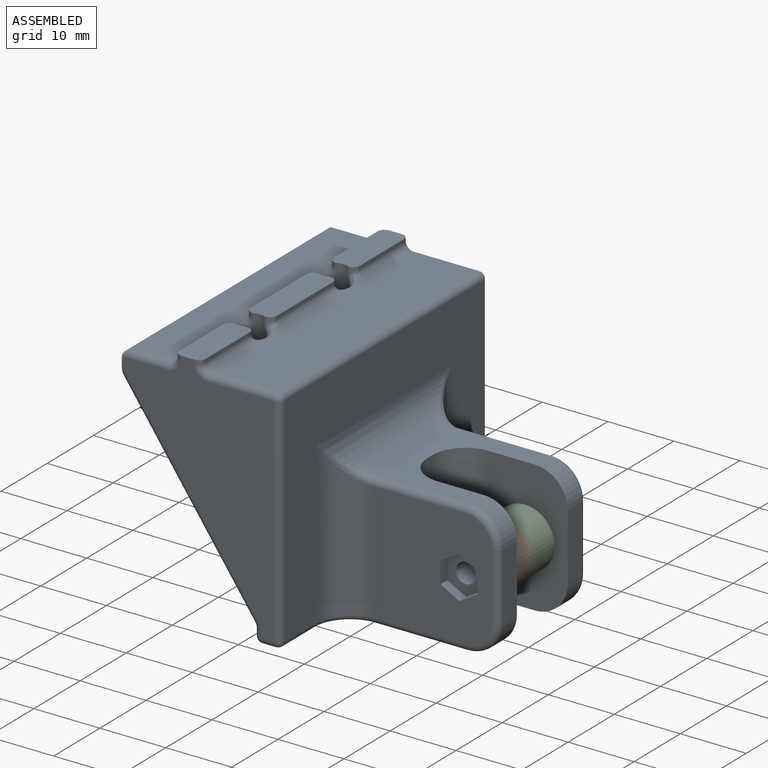
[diagram: assembled view]
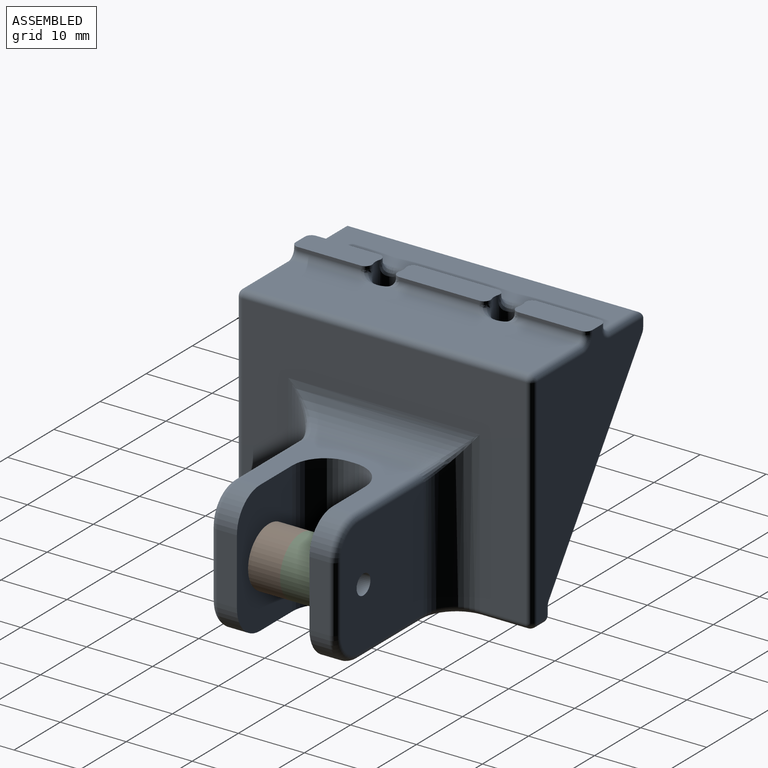
[diagram: assembled view, second angle]
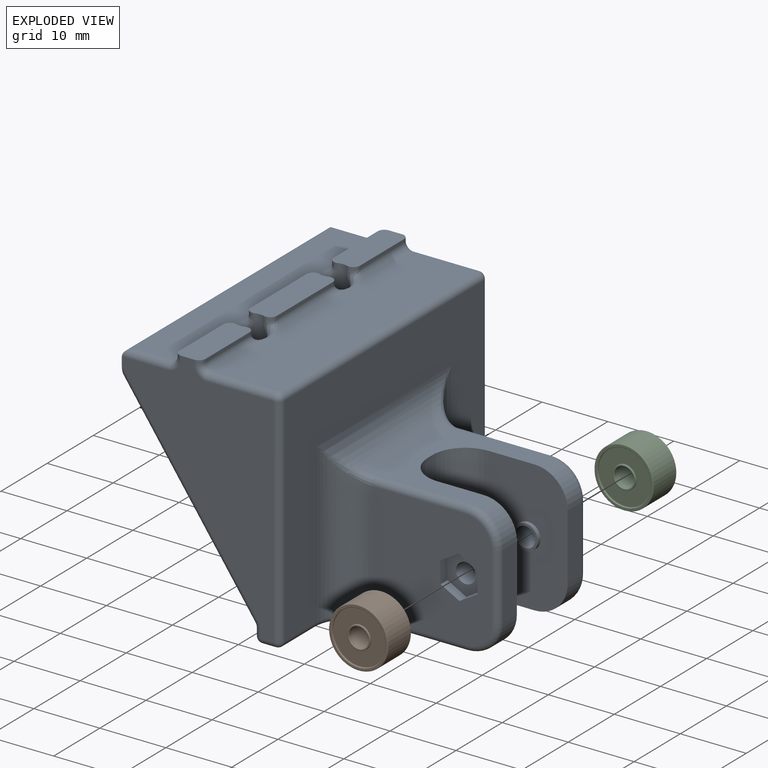
[diagram: exploded view]
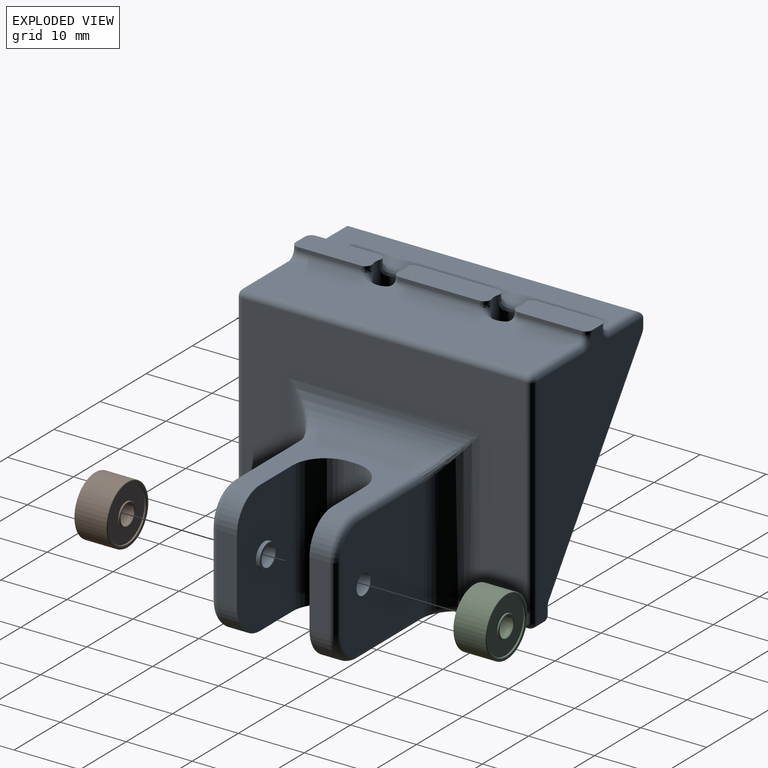
[diagram: exploded view, second angle]
ASSEMBLY  parts=3 mates=2
PART A: 149 faces, bbox 49.2x45x36.9 mm
  f0: plane 18x18mm, normal (0,-1,0), area 290mm2, adj f39,f94,f103,f108,f113,f116,f142,f143
  f1: plane 43x29mm, normal (-1,0,0), area 915.5mm2, adj f59,f60,f69,f77,f78,f88,f96,f97
  f2: plane 31x18mm, normal (0,0,-1), area 530.3mm2, adj f23,f24,f50,f60,f61,f62
  f3: plane 43x6mm, normal (0,0,1), area 257.8mm2, adj f123,f128,f129,f134,f135,f137,f138,f139
  f4: plane 17x14mm, normal (0,0,1), area 116.7mm2, adj f5,f6,f13,f40,f41,f42,f45,f46
  f5: plane 20x1mm, normal (1,0,0), area 20mm2, adj f4,f14,f41,f42
  f6: plane 20x12mm, normal (0,-1,0), area 217.9mm2, adj f4,f7,f14,f17,f41,f43,f45
  f7: plane 10x3mm, normal (1,0,0), area 30mm2, adj f6,f43,f45,f55
  f8: plane 18x18mm, normal (0,1,0), area 310.1mm2, adj f16,f38,f48,f49,f55,f66,f74
  f9: plane 35.5x23mm, normal (0,1,0), area 414.1mm2, adj f22,f27,f76,f86,f87,f91,f95,f96
  f10: plane 35.5x23mm, normal (0,-1,0), area 414.1mm2, adj f22,f33,f98,f99,f105,f106,f110,f111
  f11: plane 43x33mm, normal (1,0,0), area 723mm2, adj f38,f39,f40,f85,f102,f112,f118,f121
  f12: plane 10x3mm, normal (1,0,0), area 30mm2, adj f13,f44,f46,f108
  f13: plane 20x12mm, normal (0,1,0), area 217.9mm2, adj f4,f12,f14,f19,f42,f44,f46
  f14: plane 43x22mm, normal (0,0,-1), area 320.2mm2, adj f5,f6,f13,f41,f42,f43,f44,f74
  f15: cylinder r=1.5mm len=3.1mm, axis (0,-1,0), area 29.2mm2, adj f20,f148
  f16: cylinder r=1.5mm len=4.6mm, axis (0,-1,0), area 43.4mm2, adj f8,f18
  f17: cylinder r=1.9mm len=3.8mm, axis (0,1,0), area 7.2mm2, adj f6,f18
  f18: plane 3.8x3.8mm, normal (0,-1,0), area 4.3mm2, adj f16,f17
  f19: cylinder r=1.9mm len=3.8mm, axis (0,1,0), area 7.2mm2, adj f13,f20
  f20: plane 3.8x3.8mm, normal (0,1,0), area 4.3mm2, adj f15,f19
  f21: plane 43x10mm, normal (0,0,1), area 429.8mm2, adj f64,f65,f82,f83,f100,f101,f111,f112
  f22: plane 45x2.68mm, normal (-1,0,0), area 97.8mm2, adj f9,f10,f54,f62,f68,f72,f76,f89
  f23: cylinder r=2.1mm len=5.5mm, axis (0,0,1), area 49.2mm2, adj f2,f27,f30,f53,f56,f65,f67,f75
  f24: cylinder r=2.1mm len=5.5mm, axis (0,0,1), area 49.2mm2, adj f2,f30,f33,f63,f73,f81,f82,f90
  f25: plane 9.57x0.5mm, normal (1,0,0), area 4.8mm2, adj f27,f67,f83,f86
  f26: plane 9.57x0.5mm, normal (-1,0,0), area 4.8mm2, adj f27,f133,f138,f141
  f27: plane 11.57x4mm, normal (0,0,1), area 45.2mm2, adj f9,f23,f25,f26,f67,f86,f133,f141
  f28: plane 12.13x0.5mm, normal (-1,0,0), area 6.1mm2, adj f30,f122,f127,f128
  f29: plane 12.13x0.5mm, normal (1,0,0), area 6.1mm2, adj f30,f53,f63,f64
  f30: plane 14.13x4mm, normal (0,0,1), area 55.3mm2, adj f23,f24,f28,f29,f53,f63,f122,f127
  f31: plane 9.57x0.5mm, normal (-1,0,0), area 4.8mm2, adj f33,f124,f129,f130
  f32: plane 9.57x0.5mm, normal (1,0,0), area 4.8mm2, adj f33,f81,f99,f100
  f33: plane 11.57x4mm, normal (0,0,1), area 45.2mm2, adj f10,f24,f31,f32,f81,f99,f124,f130
  f34: plane 24.39x17.08mm, normal (0,-1,0), area 208.3mm2, adj f50,f58,f59
  f35: plane 28.05x19.64mm, normal (-0.82,0,-0.57), area 137.2mm2, adj f51,f58,f68,f76,f77
  f36: plane 24.39x17.08mm, normal (0,1,0), area 208.3mm2, adj f61,f78,f79
  f37: plane 28.05x19.64mm, normal (-0.82,0,-0.57), area 137.2mm2, adj f71,f79,f89,f97,f98
  f38: cylinder r=5mm len=24mm, axis (0,0,1), area 158.5mm2, adj f8,f11,f47,f84
  f39: cylinder r=5mm len=24mm, axis (0,0,1), area 158.5mm2, adj f0,f11,f92,f119
  f40: cylinder r=5mm len=29mm, axis (0,1,0), area 167.8mm2, adj f4,f11,f47,f92
  f41: cylinder r=5mm len=20mm, axis (0,0,1), area 157.1mm2, adj f4,f5,f6,f14
  f42: cylinder r=5mm len=20mm, axis (0,0,1), area 157.1mm2, adj f4,f5,f13,f14
  f43: cylinder r=5mm len=5mm, axis (0,1,0), area 23.6mm2, adj f6,f7,f14,f66
  f44: cylinder r=5mm len=5mm, axis (0,1,0), area 23.6mm2, adj f12,f13,f14,f113
  f45: cylinder r=5mm len=5mm, axis (0,-1,0), area 23.6mm2, adj f4,f6,f7,f49
  f46: cylinder r=5mm len=5mm, axis (0,-1,0), area 23.6mm2, adj f4,f12,f13,f103
  f47: bspline ~6x6mm, area 8.8mm2, adj f38,f40,f48
  f48: cylinder r=1mm len=14mm, axis (1,0,0), area 22mm2, adj f4,f8,f47,f49
  f49: torus R=4mm, axis (0,1,0), area 11.4mm2, adj f8,f45,f48,f55
  f50: cylinder r=1mm len=18mm, axis (-1,0,0), area 27.9mm2, adj f2,f34,f51,f52,f54
  f51: bspline ~2.1x1.82mm, area 1.8mm2, adj f35,f50,f57,f58
  f52: sphere r=1mm, area 1.6mm2, adj f50,f59,f60
  f53: cylinder r=1mm len=1.32mm, axis (0,0,1), area 0.9mm2, adj f23,f29,f30,f56
  f54: torus R=2mm, axis (-1,0,0), area 1.8mm2, adj f22,f50,f57,f62
  f55: cylinder r=1mm len=10mm, axis (0,0,-1), area 15.7mm2, adj f7,f8,f49,f66
  f56: bspline ~2.82x2.42mm, area 4.7mm2, adj f23,f53,f64,f65
  f57: sphere r=1mm, area 0.4mm2, adj f51,f54,f68
  f58: cylinder r=1mm len=27.3mm, axis (0.57,0,-0.82), area 49.6mm2, adj f34,f35,f51,f69
  f59: cylinder r=1mm len=24.39mm, axis (0,0,1), area 38.3mm2, adj f1,f34,f52,f69
  f60: cylinder r=1mm len=31mm, axis (0,1,0), area 48.7mm2, adj f1,f2,f52,f70
  f61: cylinder r=1mm len=18mm, axis (1,0,0), area 27.9mm2, adj f2,f36,f70,f71,f72
  f62: cylinder r=1mm len=31mm, axis (0,1,0), area 48.7mm2, adj f2,f22,f54,f72
  f63: cylinder r=1mm len=1.32mm, axis (0,0,1), area 0.9mm2, adj f24,f29,f30,f73
  f64: cylinder r=1mm len=16.44mm, axis (0,1,0), area 20.6mm2, adj f21,f29,f56,f73
  f65: torus R=3.1mm, axis (0,0,1), area 2mm2, adj f21,f23,f56,f75
  f66: torus R=4mm, axis (0,1,0), area 11.4mm2, adj f8,f43,f55,f74
  f67: cylinder r=1mm len=1.32mm, axis (0,0,1), area 0.9mm2, adj f23,f25,f27,f75
  f68: cylinder r=1mm len=5.07mm, axis (0,-1,0), area 2.9mm2, adj f22,f35,f57,f76
  f69: bspline ~3.49x2mm, area 4mm2, adj f1,f58,f59,f77
  f70: sphere r=1mm, area 1.6mm2, adj f60,f61,f78
  f71: bspline ~1.74x1.32mm, area 1.8mm2, adj f37,f61,f79,f80
  f72: torus R=2mm, axis (-1,0,0), area 1.8mm2, adj f22,f61,f62,f80
  f73: bspline ~2.85x2.38mm, area 4.7mm2, adj f24,f63,f64,f82
  f74: cylinder r=1mm len=14mm, axis (-1,0,0), area 22mm2, adj f8,f14,f66,f84
  f75: bspline ~2.85x2.38mm, area 4.7mm2, adj f23,f65,f67,f83
  f76: cylinder r=1mm len=30.05mm, axis (0.57,0,-0.82), area 55mm2, adj f9,f22,f35,f68,f87
  f77: cylinder r=1mm len=4mm, axis (0,-1,0), area 2.4mm2, adj f1,f35,f69,f87
  f78: cylinder r=1mm len=24.39mm, axis (0,0,-1), area 38.3mm2, adj f1,f36,f70,f88
  f79: cylinder r=1mm len=27.3mm, axis (-0.57,0,0.82), area 49.6mm2, adj f36,f37,f71,f88
  f80: sphere r=1mm, area 0.4mm2, adj f71,f72,f89
  f81: cylinder r=1mm len=1.32mm, axis (0,0,1), area 0.9mm2, adj f24,f32,f33,f90
  f82: torus R=3.1mm, axis (0,0,1), area 2mm2, adj f21,f24,f73,f90
  f83: cylinder r=1mm len=11.72mm, axis (0,1,0), area 15.8mm2, adj f21,f25,f75,f91
  f84: torus R=6mm, axis (0,0,1), area 13.2mm2, adj f14,f38,f74,f85
  f85: cylinder r=1mm len=7mm, axis (0,1,0), area 11mm2, adj f11,f14,f84,f93
  f86: cylinder r=1mm len=1mm, axis (0,0,-1), area 0.8mm2, adj f9,f25,f27,f91
  f87: torus R=2mm, axis (0,1,0), area 1.3mm2, adj f9,f76,f77,f96
  f88: bspline ~3.49x2mm, area 4mm2, adj f1,f78,f79,f97
  f89: cylinder r=1mm len=5.07mm, axis (0,-1,0), area 2.9mm2, adj f22,f37,f80,f98
  f90: bspline ~2.82x2.42mm, area 4.7mm2, adj f24,f81,f82,f100
  f91: torus R=2mm, axis (0,1,0), area 3.4mm2, adj f9,f83,f86,f101
  f92: bspline ~6x6mm, area 8.8mm2, adj f39,f40,f94
  f93: sphere r=1mm, area 1.6mm2, adj f85,f95,f102
  f94: cylinder r=1mm len=14mm, axis (-1,0,0), area 22mm2, adj f0,f4,f92,f103
  f95: cylinder r=1mm len=2mm, axis (-1,0,0), area 3.1mm2, adj f9,f14,f93,f104
  f96: cylinder r=1mm len=1.12mm, axis (0,0,1), area 1.8mm2, adj f1,f9,f87,f104
  f97: cylinder r=1mm len=4mm, axis (0,-1,0), area 2.4mm2, adj f1,f37,f88,f105
  f98: cylinder r=1mm len=30.05mm, axis (-0.57,0,0.82), area 55mm2, adj f10,f22,f37,f89,f105
  f99: cylinder r=1mm len=1mm, axis (0,0,1), area 0.8mm2, adj f10,f32,f33,f106
  f100: cylinder r=1mm len=11.72mm, axis (0,1,0), area 15.8mm2, adj f21,f32,f90,f106
  f101: cylinder r=1mm len=10mm, axis (1,0,0), area 15.7mm2, adj f9,f21,f91,f107
  f102: cylinder r=1mm len=33mm, axis (0,0,-1), area 51.8mm2, adj f9,f11,f93,f107
  f103: torus R=4mm, axis (0,-1,0), area 11.4mm2, adj f0,f46,f94,f108
  f104: sphere r=1mm, area 1.6mm2, adj f95,f96,f109
  f105: torus R=2mm, axis (0,1,0), area 1.3mm2, adj f10,f97,f98,f110
  f106: torus R=2mm, axis (0,1,0), area 3.4mm2, adj f10,f99,f100,f111
  f107: sphere r=1mm, area 1.6mm2, adj f101,f102,f112
  f108: cylinder r=1mm len=10mm, axis (0,0,-1), area 15.7mm2, adj f0,f12,f103,f113
  f109: cylinder r=1mm len=43mm, axis (0,-1,0), area 67.5mm2, adj f1,f14,f104,f114
  f110: cylinder r=1mm len=1.12mm, axis (0,0,-1), area 1.8mm2, adj f1,f10,f105,f114
  f111: cylinder r=1mm len=10mm, axis (-1,0,0), area 15.7mm2, adj f10,f21,f106,f115
  f112: cylinder r=1mm len=43mm, axis (0,-1,0), area 67.5mm2, adj f11,f21,f107,f115
  f113: torus R=4mm, axis (0,-1,0), area 11.4mm2, adj f0,f44,f108,f116
  f114: sphere r=1mm, area 1.6mm2, adj f109,f110,f117
  f115: sphere r=1mm, area 1.6mm2, adj f111,f112,f118
  f116: cylinder r=1mm len=14mm, axis (1,0,0), area 22mm2, adj f0,f14,f113,f119
  f117: cylinder r=1mm len=2mm, axis (1,0,0), area 3.1mm2, adj f10,f14,f114,f120
  f118: cylinder r=1mm len=33mm, axis (0,0,1), area 51.8mm2, adj f10,f11,f115,f120
  f119: torus R=6mm, axis (0,0,1), area 13.2mm2, adj f14,f39,f116,f121
  f120: sphere r=1mm, area 1.6mm2, adj f117,f118,f121
  f121: cylinder r=1mm len=7mm, axis (0,1,0), area 11mm2, adj f11,f14,f119,f120
  f122: cylinder r=1mm len=1.32mm, axis (0,0,1), area 0.9mm2, adj f24,f28,f30,f125
  f123: torus R=3.1mm, axis (0,0,1), area 2mm2, adj f3,f24,f125,f126
  f124: cylinder r=1mm len=1.32mm, axis (0,0,1), area 0.9mm2, adj f24,f31,f33,f126
  f125: bspline ~2.82x2.42mm, area 4.7mm2, adj f24,f122,f123,f128
  f126: bspline ~2.85x2.38mm, area 4.7mm2, adj f24,f123,f124,f129
  f127: cylinder r=1mm len=1.32mm, axis (0,0,1), area 0.9mm2, adj f23,f28,f30,f131
  f128: cylinder r=1mm len=16.44mm, axis (0,-1,0), area 20.6mm2, adj f3,f28,f125,f131
  f129: cylinder r=1mm len=11.72mm, axis (0,-1,0), area 15.8mm2, adj f3,f31,f126,f132
  f130: cylinder r=1mm len=1mm, axis (0,0,-1), area 0.8mm2, adj f10,f31,f33,f132
  f131: bspline ~2.85x2.38mm, area 4.7mm2, adj f23,f127,f128,f134
  f132: torus R=2mm, axis (0,1,0), area 3.4mm2, adj f10,f129,f130,f135
  f133: cylinder r=1mm len=1.32mm, axis (0,0,1), area 0.9mm2, adj f23,f26,f27,f136
  f134: torus R=3.1mm, axis (0,0,1), area 2mm2, adj f3,f23,f131,f136
  f135: cylinder r=1mm len=7mm, axis (-1,0,0), area 10.4mm2, adj f3,f10,f132,f137
  f136: bspline ~2.82x2.42mm, area 4.7mm2, adj f23,f133,f134,f138
  f137: cylinder r=1mm len=45mm, axis (0,-1,0), area 69.5mm2, adj f3,f22,f135,f139
  f138: cylinder r=1mm len=11.72mm, axis (0,-1,0), area 15.8mm2, adj f3,f26,f136,f140
  f139: cylinder r=1mm len=7mm, axis (1,0,0), area 10.4mm2, adj f3,f9,f137,f140
  f140: torus R=2mm, axis (0,1,0), area 3.4mm2, adj f9,f138,f139,f141
  f141: cylinder r=1mm len=1mm, axis (0,0,1), area 0.8mm2, adj f9,f26,f27,f140
  f142: plane 3.23x1.5mm, normal (-1,0,-0.03), area 4.8mm2, adj f0,f143,f147,f148
  f143: plane 2.84x1.54mm, normal (-0.48,0,-0.88), area 4.8mm2, adj f0,f142,f144,f148
  f144: plane 2.76x1.69mm, normal (0.52,0,-0.85), area 4.8mm2, adj f0,f143,f145,f148
  f145: plane 3.23x1.5mm, normal (1,0,0.03), area 4.8mm2, adj f0,f144,f146,f148
  f146: plane 2.84x1.54mm, normal (0.48,0,0.88), area 4.8mm2, adj f0,f145,f147,f148
  f147: plane 2.76x1.69mm, normal (-0.52,0,0.85), area 4.8mm2, adj f0,f142,f146,f148
  f148: plane 6.46x5.68mm, normal (0,-1,0), area 20.1mm2, adj f15,f142,f143,f144,f145,f146,f147
PART B: 20 faces, bbox 9.7x9.7x5 mm
  f0: cylinder r=4mm len=8mm, axis (0,0,-1), area 3.8mm2, adj f11,f12
  f1: cylinder r=4mm len=8mm, axis (0,0,-1), area 3.8mm2, adj f10,f14
  f2: cylinder r=4.5mm len=9mm, axis (0,0,-1), area 135.7mm2, adj f13,f15
  f3: plane 8.8x8.8mm, normal (0,0,1), area 8mm2, adj f14,f15
  f4: plane 8.8x8.8mm, normal (0,0,-1), area 8mm2, adj f12,f13
  f5: cylinder r=1.75mm len=3.5mm, axis (0,0,-1), area 1.6mm2, adj f11,f16
  f6: cylinder r=1.5mm len=4.8mm, axis (0,0,-1), area 45.2mm2, adj f17,f19
  f7: cylinder r=1.75mm len=3.5mm, axis (0,0,-1), area 1.6mm2, adj f10,f18
  f8: plane 3.3x3.3mm, normal (0,0,1), area 0.5mm2, adj f18,f19
  f9: plane 3.3x3.3mm, normal (0,0,-1), area 0.5mm2, adj f16,f17
  f10: plane 8x8mm, normal (0,0,1), area 40.6mm2, adj f1,f7
  f11: plane 8x8mm, normal (0,0,-1), area 40.6mm2, adj f0,f5
  f12: torus R=4.1mm, axis (0,0,1), area 4mm2, adj f0,f4
  f13: torus R=4.4mm, axis (0,0,1), area 4.4mm2, adj f2,f4
  f14: torus R=4.1mm, axis (0,0,1), area 4mm2, adj f1,f3
  f15: torus R=4.4mm, axis (0,0,1), area 4.4mm2, adj f2,f3
  f16: torus R=1.65mm, axis (0,0,1), area 1.7mm2, adj f5,f9
  f17: torus R=1.6mm, axis (0,0,1), area 1.5mm2, adj f6,f9
  f18: torus R=1.65mm, axis (0,0,1), area 1.7mm2, adj f7,f8
  f19: torus R=1.6mm, axis (0,0,1), area 1.5mm2, adj f6,f8
PART C: same geometry as B
PLACE A t=(4.63,12.85,-2.49)mm
PLACE B rot(axis=(1,0,0),90deg) t=(20.68,-28.07,-33.57)mm
PLACE C rot(axis=(-1,0,0),90deg) t=(20.68,-28.27,48.58)mm
MATE fastened C.f0 <-> A.f15  axis (0,1,0) through (-45.21,-23.27,7.51)mm
MATE fastened B.f0 <-> A.f15  axis (0,-1,0) through (-45.21,-33.07,7.51)mm
